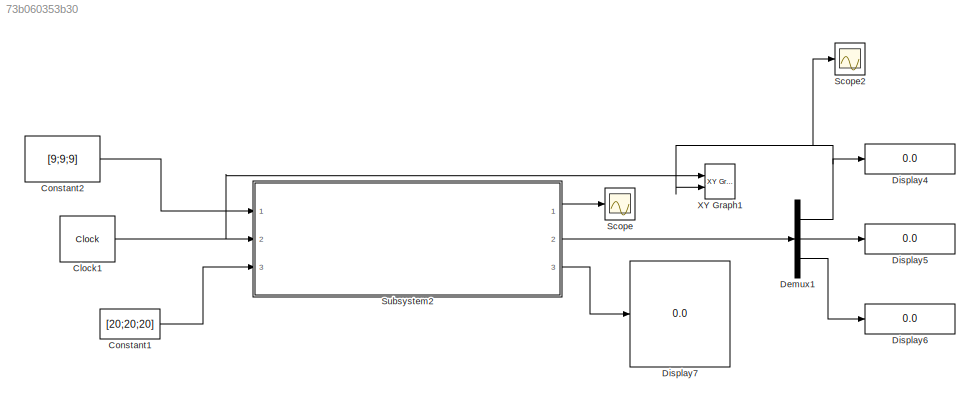
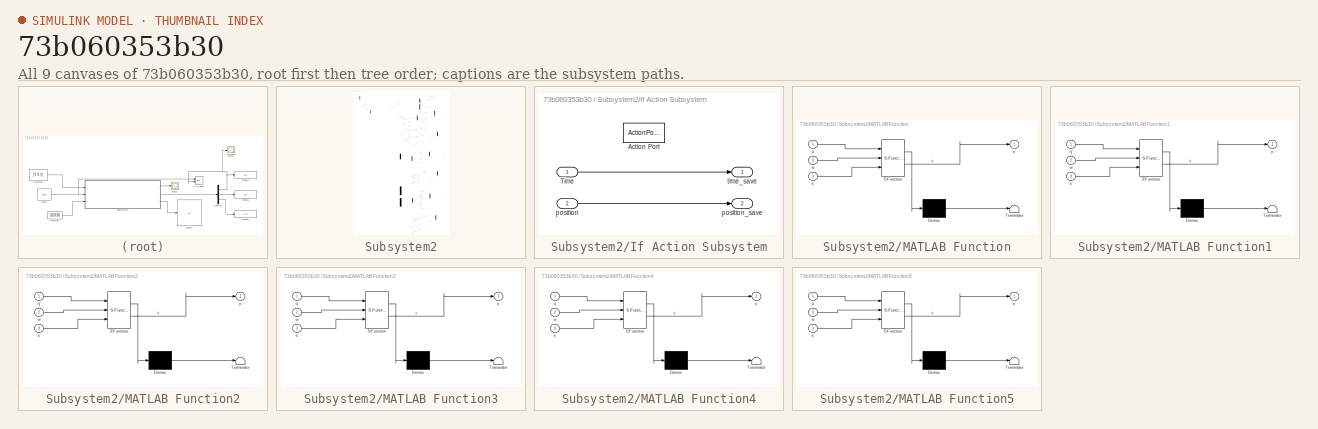
[diagram: thumbnail index - all 9 canvases of the model, root first then tree order]
MODEL slx_73b060353b30
KIND model
CONFIG AbsTol = auto
CONFIG EnableMultiTasking = off
CONFIG FixedStep = auto
CONFIG MaxStep = auto
CONFIG MinStep = auto
CONFIG RelTol = 1e-3
CONFIG SampleTimeConstraint = Unconstrained
CONFIG SolverName = VariableStepAuto
CONFIG StartTime = 0.0
CONFIG StopTime = inf
BLOCK [Clock] Clock1
  DisplayTime = on
BLOCK [Constant] Constant1
  Value = [20;20;20]
BLOCK [Constant] Constant2
  Value = [9;9;9]
BLOCK [Demux] Demux1
  Outputs = 3
  Ports = [1, 3]
BLOCK [Display] Display4
  Decimation = 1
  Ports = [1]
BLOCK [Display] Display5
  Decimation = 1
  Ports = [1]
BLOCK [Display] Display6
  Decimation = 1
  Ports = [1]
BLOCK [Display] Display7
  Decimation = 1
  Ports = [1]
BLOCK [Scope] Scope
  Floating = off
  NumInputPorts = 1
  Ports = [1]
  ScopeSpecificationString = Simulink.scopes.TimeScopeBlockCfg('CurrentConfiguration', extmgr.ConfigurationSet(extmgr.Configuration('Core','General UI',true),extmgr.Configuration('Core','Source UI',true),extmgr.Configuration('Sources','WiredSimulink',true),extmgr.Configuration('Visuals','Time Domain',true,'SerializedDisplays',{struct('MinYLimReal','-1.00000','MaxYLimReal','1.00000','YLabelReal','','MinYLimMag','0.00000','MaxY...<+1394ch>
BLOCK [Scope] Scope2
  Floating = off
  NumInputPorts = 1
  Ports = [1]
  ScopeSpecificationString = Simulink.scopes.TimeScopeBlockCfg('CurrentConfiguration', extmgr.ConfigurationSet(extmgr.Configuration('Core','General UI',true),extmgr.Configuration('Core','Source UI',true),extmgr.Configuration('Sources','WiredSimulink',true,'DataLoggingVariableName','ScopeData1'),extmgr.Configuration('Visuals','Time Domain',true,'SerializedDisplays',{struct('MinYLimReal','-2.75611','MaxYLimReal','24.80499','YLa...<+1399ch>
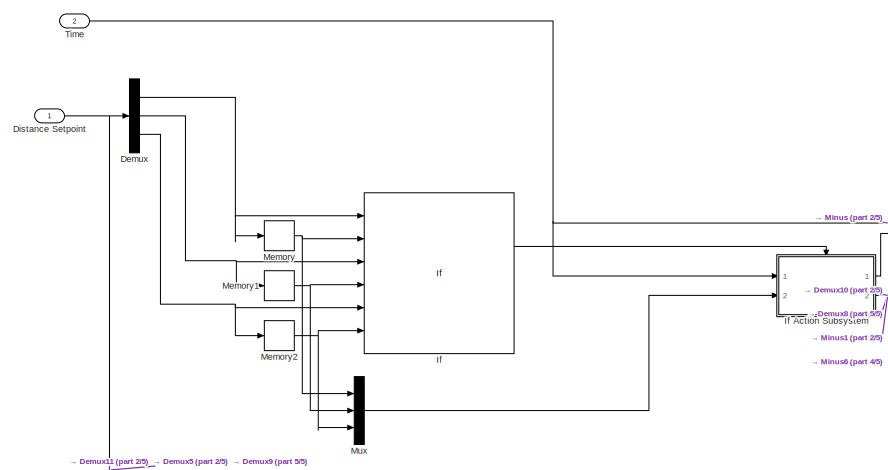
[diagram: Subsystem2 - part 1/5, top left region]
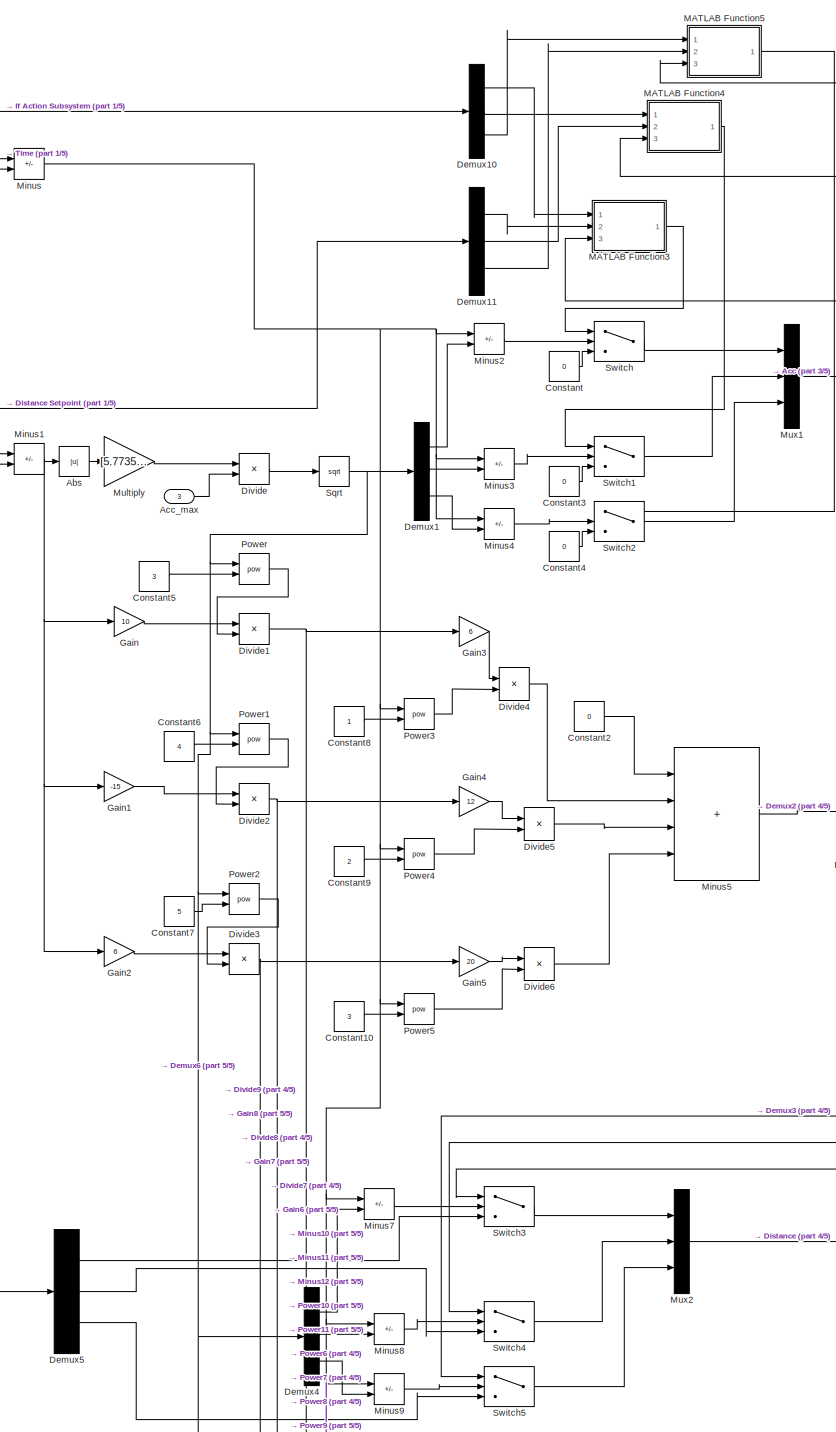
[diagram: Subsystem2 - part 2/5, top center region]
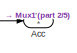
[diagram: Subsystem2 - part 3/5, top right region]
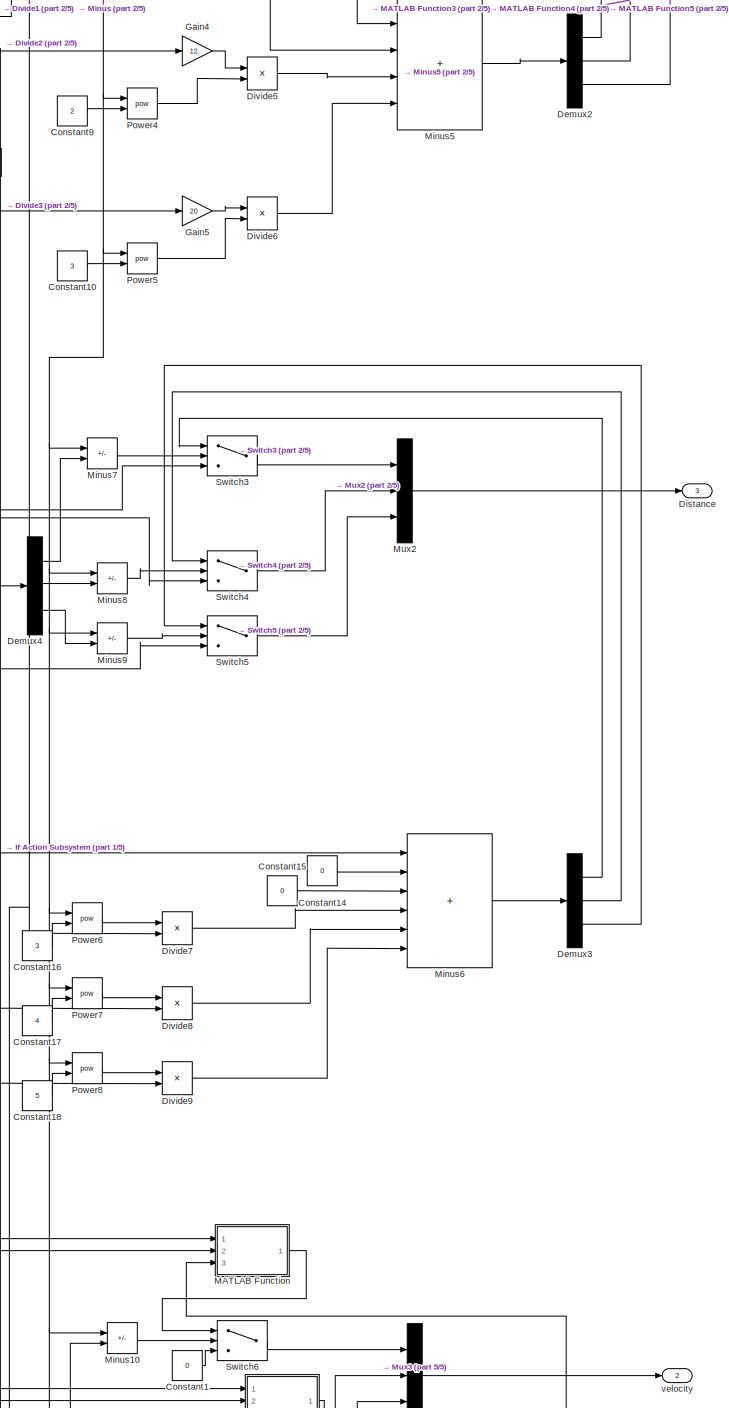
[diagram: Subsystem2 - part 4/5, middle right region]
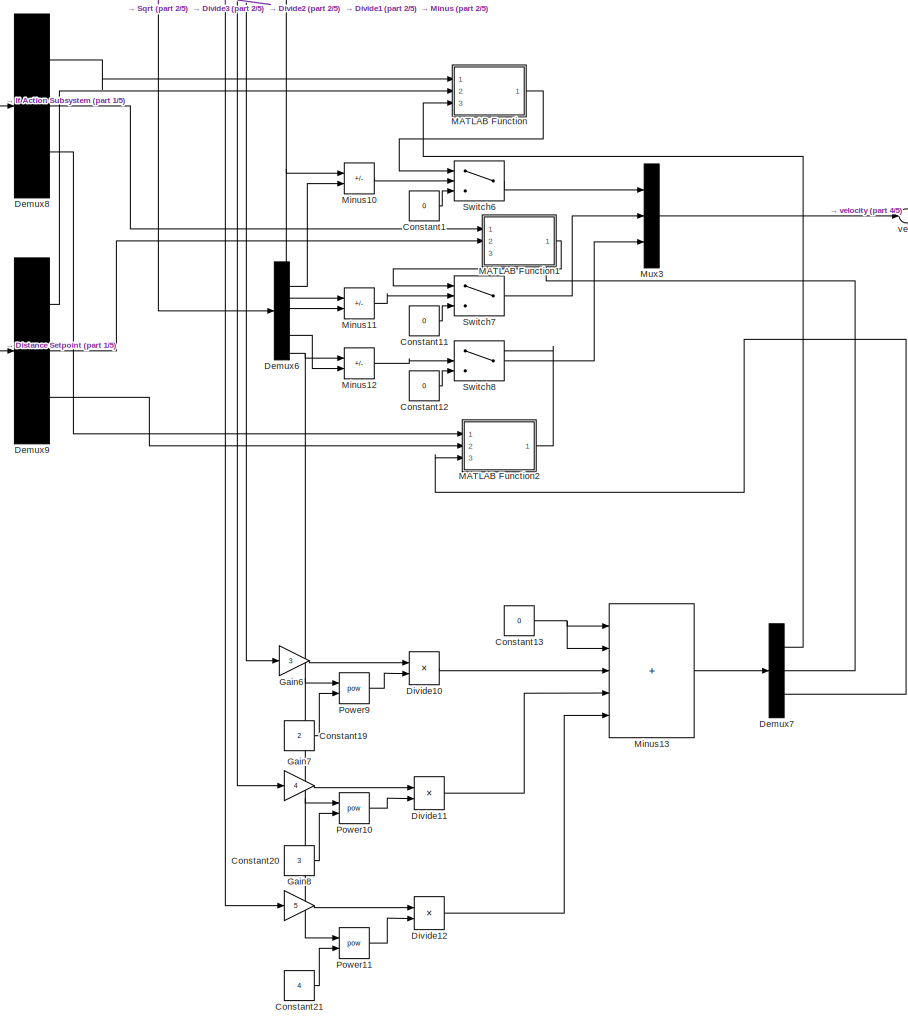
[diagram: Subsystem2 - part 5/5, bottom right region]
BLOCK [SubSystem] Subsystem2
  Ports = [3, 3]
  RequestExecContextInheritance = off
BLOCK [Abs] Subsystem2/Abs
  SaturateOnIntegerOverflow = off
BLOCK [Outport] Subsystem2/Acc 
BLOCK [Inport] Subsystem2/Acc_max
  Port = 3
BLOCK [Constant] Subsystem2/Constant
  Value = 0
BLOCK [Constant] Subsystem2/Constant1
  Value = 0
BLOCK [Constant] Subsystem2/Constant10
  Value = 3
BLOCK [Constant] Subsystem2/Constant11
  Value = 0
BLOCK [Constant] Subsystem2/Constant12
  Value = 0
BLOCK [Constant] Subsystem2/Constant13
  Value = 0
BLOCK [Constant] Subsystem2/Constant14
  Value = 0
BLOCK [Constant] Subsystem2/Constant15
  Value = 0
BLOCK [Constant] Subsystem2/Constant16
  Value = 3
BLOCK [Constant] Subsystem2/Constant17
  Value = 4
BLOCK [Constant] Subsystem2/Constant18
  Value = 5
BLOCK [Constant] Subsystem2/Constant19
  Value = 2
BLOCK [Constant] Subsystem2/Constant2
  Value = 0
BLOCK [Constant] Subsystem2/Constant20
  Value = 3
BLOCK [Constant] Subsystem2/Constant21
  Value = 4
BLOCK [Constant] Subsystem2/Constant3
  Value = 0
BLOCK [Constant] Subsystem2/Constant4
  Value = 0
BLOCK [Constant] Subsystem2/Constant5
  Value = 3
BLOCK [Constant] Subsystem2/Constant6
  Value = 4
BLOCK [Constant] Subsystem2/Constant7
  Value = 5
BLOCK [Constant] Subsystem2/Constant8
BLOCK [Constant] Subsystem2/Constant9
  Value = 2
BLOCK [Demux] Subsystem2/Demux
  Outputs = 3
  Ports = [1, 3]
BLOCK [Demux] Subsystem2/Demux1
  Outputs = 3
  Ports = [1, 3]
BLOCK [Demux] Subsystem2/Demux10
  Outputs = 3
  Ports = [1, 3]
BLOCK [Demux] Subsystem2/Demux11
  Outputs = 3
  Ports = [1, 3]
BLOCK [Demux] Subsystem2/Demux2
  Outputs = 3
  Ports = [1, 3]
BLOCK [Demux] Subsystem2/Demux3
  Outputs = 3
  Ports = [1, 3]
BLOCK [Demux] Subsystem2/Demux4
  Outputs = 3
  Ports = [1, 3]
BLOCK [Demux] Subsystem2/Demux5
  Outputs = 3
  Ports = [1, 3]
BLOCK [Demux] Subsystem2/Demux6
  Outputs = 3
  Ports = [1, 3]
BLOCK [Demux] Subsystem2/Demux7
  Outputs = 3
  Ports = [1, 3]
BLOCK [Demux] Subsystem2/Demux8
  Outputs = 3
  Ports = [1, 3]
BLOCK [Demux] Subsystem2/Demux9
  Outputs = 3
  Ports = [1, 3]
BLOCK [Outport] Subsystem2/Distance
  NameLocation = right
  Port = 3
BLOCK [Inport] Subsystem2/Distance Setpoint
BLOCK [Product] Subsystem2/Divide
  Inputs = */
  Ports = [2, 1]
BLOCK [Product] Subsystem2/Divide1
  Inputs = */
  Ports = [2, 1]
BLOCK [Product] Subsystem2/Divide10
  Inputs = **
  Ports = [2, 1]
BLOCK [Product] Subsystem2/Divide11
  Inputs = **
  Ports = [2, 1]
BLOCK [Product] Subsystem2/Divide12
  Inputs = **
  Ports = [2, 1]
BLOCK [Product] Subsystem2/Divide2
  Inputs = */
  Ports = [2, 1]
BLOCK [Product] Subsystem2/Divide3
  Inputs = */
  Ports = [2, 1]
BLOCK [Product] Subsystem2/Divide4
  Inputs = **
  Ports = [2, 1]
BLOCK [Product] Subsystem2/Divide5
  Inputs = **
  Ports = [2, 1]
BLOCK [Product] Subsystem2/Divide6
  Inputs = **
  Ports = [2, 1]
BLOCK [Product] Subsystem2/Divide7
  Inputs = **
  Ports = [2, 1]
BLOCK [Product] Subsystem2/Divide8
  Inputs = **
  Ports = [2, 1]
BLOCK [Product] Subsystem2/Divide9
  Inputs = **
  Ports = [2, 1]
BLOCK [Gain] Subsystem2/Gain
  Gain = 10
BLOCK [Gain] Subsystem2/Gain1
  Gain = -15
BLOCK [Gain] Subsystem2/Gain2
  Gain = 6
BLOCK [Gain] Subsystem2/Gain3
  Gain = 6
BLOCK [Gain] Subsystem2/Gain4
  Gain = 12
BLOCK [Gain] Subsystem2/Gain5
  Gain = 20
BLOCK [Gain] Subsystem2/Gain6
  Gain = 3
BLOCK [Gain] Subsystem2/Gain7
  Gain = 4
BLOCK [Gain] Subsystem2/Gain8
  Gain = 5
BLOCK [If] Subsystem2/If
  IfExpression = (u1~=u2 | u3~=u4 | u5~=u6)
  NumInputs = 6
  Ports = [6, 2]
BLOCK [SubSystem] Subsystem2/If Action Subsystem
  Ports = [2, 2, 0, 0, 0, 0, 0, 1]
  RequestExecContextInheritance = off
  TreatAsAtomicUnit = on
BLOCK [ActionPort] Subsystem2/If Action Subsystem/Action Port
  ActionPortLabel = if((u1~=u2 | u3~=u4 | u5~=u6))
  InitializeStates = reset
  PropagateVarSize = During execution
BLOCK [Inport] Subsystem2/If Action Subsystem/Time
BLOCK [Inport] Subsystem2/If Action Subsystem/position
  Port = 2
BLOCK [Outport] Subsystem2/If Action Subsystem/position_save
  Port = 2
BLOCK [Outport] Subsystem2/If Action Subsystem/time_save 
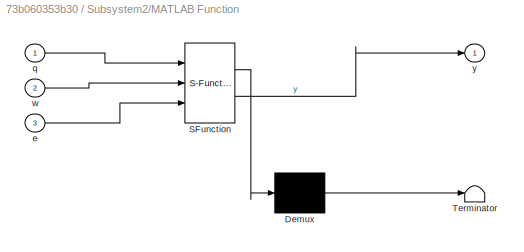
BLOCK [SubSystem] Subsystem2/MATLAB Function
  ErrorFcn = Stateflow.Translate.translate
  PermitHierarchicalResolution = ExplicitOnly
  Ports = [3, 1]
  RequestExecContextInheritance = off
  SFBlockType = MATLAB Function
  TreatAsAtomicUnit = on
BLOCK [Demux] Subsystem2/MATLAB Function/ Demux 
  Outputs = 1
  Ports = [1, 1]
BLOCK [S-Function] Subsystem2/MATLAB Function/ SFunction 
  EnableBusSupport = on
  FunctionName = sf_sfun
  PortCounts = [3 2]
  Ports = [3, 2]
  SFcnIsStateOwnerBlock = off
  SFunctionDeploymentMode = off
  Tag = Stateflow S-Function 1
BLOCK [Terminator] Subsystem2/MATLAB Function/ Terminator 
BLOCK [Inport] Subsystem2/MATLAB Function/e
  Port = 3
BLOCK [Inport] Subsystem2/MATLAB Function/q
BLOCK [Inport] Subsystem2/MATLAB Function/w
  Port = 2
BLOCK [Outport] Subsystem2/MATLAB Function/y
BLOCK [SubSystem] Subsystem2/MATLAB Function1
  ErrorFcn = Stateflow.Translate.translate
  PermitHierarchicalResolution = ExplicitOnly
  Ports = [3, 1]
  RequestExecContextInheritance = off
  SFBlockType = MATLAB Function
  TreatAsAtomicUnit = on
BLOCK [Demux] Subsystem2/MATLAB Function1/ Demux 
  Outputs = 1
  Ports = [1, 1]
BLOCK [S-Function] Subsystem2/MATLAB Function1/ SFunction 
  EnableBusSupport = on
  FunctionName = sf_sfun
  PortCounts = [3 2]
  Ports = [3, 2]
  SFcnIsStateOwnerBlock = off
  SFunctionDeploymentMode = off
  Tag = Stateflow S-Function 2
BLOCK [Terminator] Subsystem2/MATLAB Function1/ Terminator 
BLOCK [Inport] Subsystem2/MATLAB Function1/e
  Port = 3
BLOCK [Inport] Subsystem2/MATLAB Function1/q
BLOCK [Inport] Subsystem2/MATLAB Function1/w
  Port = 2
BLOCK [Outport] Subsystem2/MATLAB Function1/y
BLOCK [SubSystem] Subsystem2/MATLAB Function2
  ErrorFcn = Stateflow.Translate.translate
  PermitHierarchicalResolution = ExplicitOnly
  Ports = [3, 1]
  RequestExecContextInheritance = off
  SFBlockType = MATLAB Function
  TreatAsAtomicUnit = on
BLOCK [Demux] Subsystem2/MATLAB Function2/ Demux 
  Outputs = 1
  Ports = [1, 1]
BLOCK [S-Function] Subsystem2/MATLAB Function2/ SFunction 
  EnableBusSupport = on
  FunctionName = sf_sfun
  PortCounts = [3 2]
  Ports = [3, 2]
  SFcnIsStateOwnerBlock = off
  SFunctionDeploymentMode = off
  Tag = Stateflow S-Function 9
BLOCK [Terminator] Subsystem2/MATLAB Function2/ Terminator 
BLOCK [Inport] Subsystem2/MATLAB Function2/e
  Port = 3
BLOCK [Inport] Subsystem2/MATLAB Function2/q
BLOCK [Inport] Subsystem2/MATLAB Function2/w
  Port = 2
BLOCK [Outport] Subsystem2/MATLAB Function2/y
BLOCK [SubSystem] Subsystem2/MATLAB Function3
  ErrorFcn = Stateflow.Translate.translate
  PermitHierarchicalResolution = ExplicitOnly
  Ports = [3, 1]
  RequestExecContextInheritance = off
  SFBlockType = MATLAB Function
  TreatAsAtomicUnit = on
BLOCK [Demux] Subsystem2/MATLAB Function3/ Demux 
  Outputs = 1
  Ports = [1, 1]
BLOCK [S-Function] Subsystem2/MATLAB Function3/ SFunction 
  EnableBusSupport = on
  FunctionName = sf_sfun
  PortCounts = [3 2]
  Ports = [3, 2]
  SFcnIsStateOwnerBlock = off
  SFunctionDeploymentMode = off
  Tag = Stateflow S-Function 10
BLOCK [Terminator] Subsystem2/MATLAB Function3/ Terminator 
BLOCK [Inport] Subsystem2/MATLAB Function3/e
  Port = 3
BLOCK [Inport] Subsystem2/MATLAB Function3/q
BLOCK [Inport] Subsystem2/MATLAB Function3/w
  Port = 2
BLOCK [Outport] Subsystem2/MATLAB Function3/y
BLOCK [SubSystem] Subsystem2/MATLAB Function4
  ErrorFcn = Stateflow.Translate.translate
  PermitHierarchicalResolution = ExplicitOnly
  Ports = [3, 1]
  RequestExecContextInheritance = off
  SFBlockType = MATLAB Function
  TreatAsAtomicUnit = on
BLOCK [Demux] Subsystem2/MATLAB Function4/ Demux 
  Outputs = 1
  Ports = [1, 1]
BLOCK [S-Function] Subsystem2/MATLAB Function4/ SFunction 
  EnableBusSupport = on
  FunctionName = sf_sfun
  PortCounts = [3 2]
  Ports = [3, 2]
  SFcnIsStateOwnerBlock = off
  SFunctionDeploymentMode = off
  Tag = Stateflow S-Function 11
BLOCK [Terminator] Subsystem2/MATLAB Function4/ Terminator 
BLOCK [Inport] Subsystem2/MATLAB Function4/e
  Port = 3
BLOCK [Inport] Subsystem2/MATLAB Function4/q
BLOCK [Inport] Subsystem2/MATLAB Function4/w
  Port = 2
BLOCK [Outport] Subsystem2/MATLAB Function4/y
BLOCK [SubSystem] Subsystem2/MATLAB Function5
  ErrorFcn = Stateflow.Translate.translate
  PermitHierarchicalResolution = ExplicitOnly
  Ports = [3, 1]
  RequestExecContextInheritance = off
  SFBlockType = MATLAB Function
  TreatAsAtomicUnit = on
BLOCK [Demux] Subsystem2/MATLAB Function5/ Demux 
  Outputs = 1
  Ports = [1, 1]
BLOCK [S-Function] Subsystem2/MATLAB Function5/ SFunction 
  EnableBusSupport = on
  FunctionName = sf_sfun
  PortCounts = [3 2]
  Ports = [3, 2]
  SFcnIsStateOwnerBlock = off
  SFunctionDeploymentMode = off
  Tag = Stateflow S-Function 12
BLOCK [Terminator] Subsystem2/MATLAB Function5/ Terminator 
BLOCK [Inport] Subsystem2/MATLAB Function5/e
  Port = 3
BLOCK [Inport] Subsystem2/MATLAB Function5/q
BLOCK [Inport] Subsystem2/MATLAB Function5/w
  Port = 2
BLOCK [Outport] Subsystem2/MATLAB Function5/y
BLOCK [Memory] Subsystem2/Memory
BLOCK [Memory] Subsystem2/Memory1
BLOCK [Memory] Subsystem2/Memory2
BLOCK [Sum] Subsystem2/Minus
  IconShape = rectangular
  Inputs = +-
  Ports = [2, 1]
BLOCK [Sum] Subsystem2/Minus1
  IconShape = rectangular
  Inputs = +-
  Ports = [2, 1]
BLOCK [Sum] Subsystem2/Minus10
  IconShape = rectangular
  Inputs = -+
  Ports = [2, 1]
BLOCK [Sum] Subsystem2/Minus11
  IconShape = rectangular
  Inputs = -+
  Ports = [2, 1]
BLOCK [Sum] Subsystem2/Minus12
  IconShape = rectangular
  Inputs = -+
  Ports = [2, 1]
BLOCK [Sum] Subsystem2/Minus13
  IconShape = rectangular
  Inputs = +++++
  Ports = [5, 1]
BLOCK [Sum] Subsystem2/Minus2
  IconShape = rectangular
  Inputs = -+
  Ports = [2, 1]
BLOCK [Sum] Subsystem2/Minus3
  IconShape = rectangular
  Inputs = -+
  Ports = [2, 1]
BLOCK [Sum] Subsystem2/Minus4
  IconShape = rectangular
  Inputs = -+
  Ports = [2, 1]
BLOCK [Sum] Subsystem2/Minus5
  IconShape = rectangular
  Inputs = ++++
  Ports = [4, 1]
BLOCK [Sum] Subsystem2/Minus6
  IconShape = rectangular
  Inputs = ++++++
  Ports = [6, 1]
BLOCK [Sum] Subsystem2/Minus7
  IconShape = rectangular
  Inputs = -+
  Ports = [2, 1]
BLOCK [Sum] Subsystem2/Minus8
  IconShape = rectangular
  Inputs = -+
  Ports = [2, 1]
BLOCK [Sum] Subsystem2/Minus9
  IconShape = rectangular
  Inputs = -+
  Ports = [2, 1]
BLOCK [Gain] Subsystem2/Multiply
  Gain = [5.773502692;5.773502692;5.773502692]
BLOCK [Mux] Subsystem2/Mux
  DisplayOption = bar
  Inputs = 3
  Ports = [3, 1]
BLOCK [Mux] Subsystem2/Mux1
  DisplayOption = bar
  Inputs = 3
  Ports = [3, 1]
BLOCK [Mux] Subsystem2/Mux2
  DisplayOption = bar
  Inputs = 3
  Ports = [3, 1]
BLOCK [Mux] Subsystem2/Mux3
  DisplayOption = bar
  Inputs = 3
  Ports = [3, 1]
BLOCK [Math] Subsystem2/Power
  Operator = pow
  Ports = [2, 1]
BLOCK [Math] Subsystem2/Power1
  Operator = pow
  Ports = [2, 1]
BLOCK [Math] Subsystem2/Power10
  Operator = pow
  Ports = [2, 1]
BLOCK [Math] Subsystem2/Power11
  Operator = pow
  Ports = [2, 1]
BLOCK [Math] Subsystem2/Power2
  Operator = pow
  Ports = [2, 1]
BLOCK [Math] Subsystem2/Power3
  Operator = pow
  Ports = [2, 1]
BLOCK [Math] Subsystem2/Power4
  Operator = pow
  Ports = [2, 1]
BLOCK [Math] Subsystem2/Power5
  Operator = pow
  Ports = [2, 1]
BLOCK [Math] Subsystem2/Power6
  Operator = pow
  Ports = [2, 1]
BLOCK [Math] Subsystem2/Power7
  Operator = pow
  Ports = [2, 1]
BLOCK [Math] Subsystem2/Power8
  Operator = pow
  Ports = [2, 1]
BLOCK [Math] Subsystem2/Power9
  Operator = pow
  Ports = [2, 1]
BLOCK [Sqrt] Subsystem2/Sqrt
BLOCK [Switch] Subsystem2/Switch
  InputSameDT = off
  SaturateOnIntegerOverflow = off
BLOCK [Switch] Subsystem2/Switch1
  InputSameDT = off
  SaturateOnIntegerOverflow = off
BLOCK [Switch] Subsystem2/Switch2
  InputSameDT = off
  SaturateOnIntegerOverflow = off
BLOCK [Switch] Subsystem2/Switch3
  InputSameDT = off
  SaturateOnIntegerOverflow = off
BLOCK [Switch] Subsystem2/Switch4
  InputSameDT = off
  SaturateOnIntegerOverflow = off
BLOCK [Switch] Subsystem2/Switch5
  InputSameDT = off
  SaturateOnIntegerOverflow = off
BLOCK [Switch] Subsystem2/Switch6
  InputSameDT = off
  SaturateOnIntegerOverflow = off
BLOCK [Switch] Subsystem2/Switch7
  InputSameDT = off
  SaturateOnIntegerOverflow = off
BLOCK [Switch] Subsystem2/Switch8
  InputSameDT = off
  SaturateOnIntegerOverflow = off
BLOCK [Inport] Subsystem2/Time
  Port = 2
BLOCK [Outport] Subsystem2/velocity
  Port = 2
BLOCK [Reference] XY Graph1  REF=simulink/Sinks/XY Graph
  Ports = [2]
  SourceBlock = simulink/Sinks/XY Graph
  SourceProductBaseCode = SL
  SourceType = XY scope.
NET Clock1:1 -> Subsystem2:2, XY Graph1:1
LINE Constant1:1 -> Subsystem2:3
LINE Constant2:1 -> Subsystem2:1
NET Demux1:1 -> Display4:1, Scope2:1, XY Graph1:2
LINE Demux1:2 -> Display5:1
LINE Demux1:3 -> Display6:1
LINE Subsystem2/Abs:1 -> Subsystem2/Multiply:1
LINE Subsystem2/Acc_max:1 -> Subsystem2/Divide:2
LINE Subsystem2/Constant10:1 -> Subsystem2/Power5:2
LINE Subsystem2/Constant11:1 -> Subsystem2/Switch7:3
LINE Subsystem2/Constant12:1 -> Subsystem2/Switch8:3
NET Subsystem2/Constant13:1 -> Subsystem2/Minus13:1, Subsystem2/Minus13:2
LINE Subsystem2/Constant14:1 -> Subsystem2/Minus6:2
LINE Subsystem2/Constant15:1 -> Subsystem2/Minus6:3
LINE Subsystem2/Constant16:1 -> Subsystem2/Power6:2
LINE Subsystem2/Constant17:1 -> Subsystem2/Power7:2
LINE Subsystem2/Constant18:1 -> Subsystem2/Power8:2
LINE Subsystem2/Constant19:1 -> Subsystem2/Power9:2
LINE Subsystem2/Constant1:1 -> Subsystem2/Switch6:3
LINE Subsystem2/Constant20:1 -> Subsystem2/Power10:2
LINE Subsystem2/Constant21:1 -> Subsystem2/Power11:2
LINE Subsystem2/Constant2:1 -> Subsystem2/Minus5:1
LINE Subsystem2/Constant3:1 -> Subsystem2/Switch1:3
LINE Subsystem2/Constant4:1 -> Subsystem2/Switch2:3
LINE Subsystem2/Constant5:1 -> Subsystem2/Power:2
LINE Subsystem2/Constant6:1 -> Subsystem2/Power1:2
LINE Subsystem2/Constant7:1 -> Subsystem2/Power2:2
LINE Subsystem2/Constant8:1 -> Subsystem2/Power3:2
LINE Subsystem2/Constant9:1 -> Subsystem2/Power4:2
LINE Subsystem2/Constant:1 -> Subsystem2/Switch:3
LINE Subsystem2/Demux10:1 -> Subsystem2/MATLAB Function3:1
LINE Subsystem2/Demux10:2 -> Subsystem2/MATLAB Function4:1
LINE Subsystem2/Demux10:3 -> Subsystem2/MATLAB Function5:1
LINE Subsystem2/Demux11:1 -> Subsystem2/MATLAB Function3:2
LINE Subsystem2/Demux11:2 -> Subsystem2/MATLAB Function4:2
LINE Subsystem2/Demux11:3 -> Subsystem2/MATLAB Function5:2
LINE Subsystem2/Demux1:1 -> Subsystem2/Minus2:2
LINE Subsystem2/Demux1:2 -> Subsystem2/Minus3:2
LINE Subsystem2/Demux1:3 -> Subsystem2/Minus4:2
LINE Subsystem2/Demux2:1 -> Subsystem2/MATLAB Function3:3
LINE Subsystem2/Demux2:2 -> Subsystem2/MATLAB Function4:3
LINE Subsystem2/Demux2:3 -> Subsystem2/MATLAB Function5:3
LINE Subsystem2/Demux3:1 -> Subsystem2/Switch3:1
LINE Subsystem2/Demux3:2 -> Subsystem2/Switch4:1
LINE Subsystem2/Demux3:3 -> Subsystem2/Switch5:1
LINE Subsystem2/Demux4:1 -> Subsystem2/Minus7:2
LINE Subsystem2/Demux4:2 -> Subsystem2/Minus8:2
LINE Subsystem2/Demux4:3 -> Subsystem2/Minus9:2
LINE Subsystem2/Demux5:1 -> Subsystem2/Switch3:3
LINE Subsystem2/Demux5:2 -> Subsystem2/Switch4:3
LINE Subsystem2/Demux5:3 -> Subsystem2/Switch5:3
LINE Subsystem2/Demux6:1 -> Subsystem2/Minus10:2
LINE Subsystem2/Demux6:2 -> Subsystem2/Minus11:2
LINE Subsystem2/Demux6:3 -> Subsystem2/Minus12:2
LINE Subsystem2/Demux7:1 -> Subsystem2/MATLAB Function:3
LINE Subsystem2/Demux7:2 -> Subsystem2/MATLAB Function1:3
LINE Subsystem2/Demux7:3 -> Subsystem2/MATLAB Function2:3
LINE Subsystem2/Demux8:1 -> Subsystem2/MATLAB Function:1
LINE Subsystem2/Demux8:2 -> Subsystem2/MATLAB Function1:1
LINE Subsystem2/Demux8:3 -> Subsystem2/MATLAB Function2:1
LINE Subsystem2/Demux9:1 -> Subsystem2/MATLAB Function:2
LINE Subsystem2/Demux9:2 -> Subsystem2/MATLAB Function1:2
LINE Subsystem2/Demux9:3 -> Subsystem2/MATLAB Function2:2
NET Subsystem2/Demux:1 -> Subsystem2/If:1, Subsystem2/Memory:1
NET Subsystem2/Demux:2 -> Subsystem2/If:3, Subsystem2/Memory1:1
NET Subsystem2/Demux:3 -> Subsystem2/If:5, Subsystem2/Memory2:1
NET Subsystem2/Distance Setpoint:1 -> Subsystem2/Demux11:1, Subsystem2/Demux5:1, Subsystem2/Demux9:1, Subsystem2/Demux:1, Subsystem2/Minus1:1
LINE Subsystem2/Divide10:1 -> Subsystem2/Minus13:3
LINE Subsystem2/Divide11:1 -> Subsystem2/Minus13:4
LINE Subsystem2/Divide12:1 -> Subsystem2/Minus13:5
NET Subsystem2/Divide1:1 -> Subsystem2/Divide7:2, Subsystem2/Gain3:1, Subsystem2/Gain6:1
NET Subsystem2/Divide2:1 -> Subsystem2/Divide8:2, Subsystem2/Gain4:1, Subsystem2/Gain7:1
NET Subsystem2/Divide3:1 -> Subsystem2/Divide9:2, Subsystem2/Gain5:1, Subsystem2/Gain8:1
LINE Subsystem2/Divide4:1 -> Subsystem2/Minus5:2
LINE Subsystem2/Divide5:1 -> Subsystem2/Minus5:3
LINE Subsystem2/Divide6:1 -> Subsystem2/Minus5:4
LINE Subsystem2/Divide7:1 -> Subsystem2/Minus6:4
LINE Subsystem2/Divide8:1 -> Subsystem2/Minus6:5
LINE Subsystem2/Divide9:1 -> Subsystem2/Minus6:6
LINE Subsystem2/Divide:1 -> Subsystem2/Sqrt:1
LINE Subsystem2/Gain1:1 -> Subsystem2/Divide2:1
LINE Subsystem2/Gain2:1 -> Subsystem2/Divide3:1
LINE Subsystem2/Gain3:1 -> Subsystem2/Divide4:1
LINE Subsystem2/Gain4:1 -> Subsystem2/Divide5:1
LINE Subsystem2/Gain5:1 -> Subsystem2/Divide6:1
LINE Subsystem2/Gain6:1 -> Subsystem2/Divide10:1
LINE Subsystem2/Gain7:1 -> Subsystem2/Divide11:1
LINE Subsystem2/Gain8:1 -> Subsystem2/Divide12:1
LINE Subsystem2/Gain:1 -> Subsystem2/Divide1:1
LINE Subsystem2/If Action Subsystem/Time:1 -> Subsystem2/If Action Subsystem/time_save :1
LINE Subsystem2/If Action Subsystem/position:1 -> Subsystem2/If Action Subsystem/position_save:1
LINE Subsystem2/If Action Subsystem:1 -> Subsystem2/Minus:2
NET Subsystem2/If Action Subsystem:2 -> Subsystem2/Demux10:1, Subsystem2/Demux8:1, Subsystem2/Minus1:2, Subsystem2/Minus6:1
LINE Subsystem2/If:1 -> Subsystem2/If Action Subsystem:ifaction
LINE Subsystem2/MATLAB Function1:1 -> Subsystem2/Switch7:1
LINE Subsystem2/MATLAB Function2:1 -> Subsystem2/Switch8:1
LINE Subsystem2/MATLAB Function3:1 -> Subsystem2/Switch:1
LINE Subsystem2/MATLAB Function4:1 -> Subsystem2/Switch1:1
LINE Subsystem2/MATLAB Function5:1 -> Subsystem2/Switch2:1
LINE Subsystem2/MATLAB Function:1 -> Subsystem2/Switch6:1
NET Subsystem2/Memory1:1 -> Subsystem2/If:4, Subsystem2/Mux:2
NET Subsystem2/Memory2:1 -> Subsystem2/If:6, Subsystem2/Mux:3
NET Subsystem2/Memory:1 -> Subsystem2/If:2, Subsystem2/Mux:1
LINE Subsystem2/Minus10:1 -> Subsystem2/Switch6:2
LINE Subsystem2/Minus11:1 -> Subsystem2/Switch7:2
LINE Subsystem2/Minus12:1 -> Subsystem2/Switch8:2
LINE Subsystem2/Minus13:1 -> Subsystem2/Demux7:1
NET Subsystem2/Minus1:1 -> Subsystem2/Abs:1, Subsystem2/Gain1:1, Subsystem2/Gain2:1, Subsystem2/Gain:1
LINE Subsystem2/Minus2:1 -> Subsystem2/Switch:2
LINE Subsystem2/Minus3:1 -> Subsystem2/Switch1:2
LINE Subsystem2/Minus4:1 -> Subsystem2/Switch2:2
LINE Subsystem2/Minus5:1 -> Subsystem2/Demux2:1
LINE Subsystem2/Minus6:1 -> Subsystem2/Demux3:1
LINE Subsystem2/Minus7:1 -> Subsystem2/Switch3:2
LINE Subsystem2/Minus8:1 -> Subsystem2/Switch4:2
LINE Subsystem2/Minus9:1 -> Subsystem2/Switch5:2
NET Subsystem2/Minus:1 -> Subsystem2/Minus10:1, Subsystem2/Minus11:1, Subsystem2/Minus12:1, Subsystem2/Minus2:1, Subsystem2/Minus3:1, Subsystem2/Minus4:1, Subsystem2/Minus7:1, Subsystem2/Minus8:1, Subsystem2/Minus9:1, Subsystem2/Power10:1, Subsystem2/Power11:1, Subsystem2/Power3:1, Subsystem2/Power4:1, Subsystem2/Power5:1, Subsystem2/Power6:1, Subsystem2/Power7:1, Subsystem2/Power8:1, Subsystem2/Power9:1
LINE Subsystem2/Multiply:1 -> Subsystem2/Divide:1
LINE Subsystem2/Mux1:1 -> Subsystem2/Acc :1
LINE Subsystem2/Mux2:1 -> Subsystem2/Distance:1
LINE Subsystem2/Mux3:1 -> Subsystem2/velocity:1
LINE Subsystem2/Mux:1 -> Subsystem2/If Action Subsystem:2
LINE Subsystem2/Power10:1 -> Subsystem2/Divide11:2
LINE Subsystem2/Power11:1 -> Subsystem2/Divide12:2
LINE Subsystem2/Power1:1 -> Subsystem2/Divide2:2
LINE Subsystem2/Power2:1 -> Subsystem2/Divide3:2
LINE Subsystem2/Power3:1 -> Subsystem2/Divide4:2
LINE Subsystem2/Power4:1 -> Subsystem2/Divide5:2
LINE Subsystem2/Power5:1 -> Subsystem2/Divide6:2
LINE Subsystem2/Power6:1 -> Subsystem2/Divide7:1
LINE Subsystem2/Power7:1 -> Subsystem2/Divide8:1
LINE Subsystem2/Power8:1 -> Subsystem2/Divide9:1
LINE Subsystem2/Power9:1 -> Subsystem2/Divide10:2
LINE Subsystem2/Power:1 -> Subsystem2/Divide1:2
NET Subsystem2/Sqrt:1 -> Subsystem2/Demux1:1, Subsystem2/Demux4:1, Subsystem2/Demux6:1, Subsystem2/Power1:1, Subsystem2/Power2:1, Subsystem2/Power:1
LINE Subsystem2/Switch1:1 -> Subsystem2/Mux1:2
LINE Subsystem2/Switch2:1 -> Subsystem2/Mux1:3
LINE Subsystem2/Switch3:1 -> Subsystem2/Mux2:1
LINE Subsystem2/Switch4:1 -> Subsystem2/Mux2:2
LINE Subsystem2/Switch5:1 -> Subsystem2/Mux2:3
LINE Subsystem2/Switch6:1 -> Subsystem2/Mux3:1
LINE Subsystem2/Switch7:1 -> Subsystem2/Mux3:2
LINE Subsystem2/Switch8:1 -> Subsystem2/Mux3:3
LINE Subsystem2/Switch:1 -> Subsystem2/Mux1:1
NET Subsystem2/Time:1 -> Subsystem2/If Action Subsystem:1, Subsystem2/Minus:1
LINE Subsystem2:1 -> Scope:1
LINE Subsystem2:2 -> Demux1:1
LINE Subsystem2:3 -> Display7:1
note: NET lines group one-source signal fan-out (src -> all destinations, sorted); 1:1 wires keep LINE
CHART Subsystem2/MATLAB Function1 states=1 transitions=1
  STATE_LABEL 'eML_blk_kernel()'
  STATE_LABEL 'SCRIPT:\nfunction y = fcn(q,w,e)\n  if(q==w)\n    y=0;\n  else \n    y = e; \n  end\n\nend'
CHART Subsystem2/MATLAB Function2 states=1 transitions=1
  STATE_LABEL 'eML_blk_kernel()'
  STATE_LABEL 'SCRIPT:\nfunction y = fcn(q,w,e)\n  if(q==w)\n    y=0;\n  else \n    y = e; \n  end\n\nend'
CHART Subsystem2/MATLAB Function3 states=1 transitions=1
  STATE_LABEL 'eML_blk_kernel()'
  STATE_LABEL 'SCRIPT:\nfunction y = fcn(q,w,e)\n  if(q==w)\n    y=0;\n  else \n    y = e; \n  end\n\nend'
CHART Subsystem2/MATLAB Function4 states=1 transitions=1
  STATE_LABEL 'eML_blk_kernel()'
  STATE_LABEL 'SCRIPT:\nfunction y = fcn(q,w,e)\n  if(q==w)\n    y=0;\n  else \n    y = e; \n  end\n\nend'
CHART Subsystem2/MATLAB Function5 states=1 transitions=1
  STATE_LABEL 'eML_blk_kernel()'
  STATE_LABEL 'SCRIPT:\nfunction y = fcn(q,w,e)\n  if(q==w)\n    y=0;\n  else \n    y = e; \n  end\n\nend'
CHART Subsystem2/MATLAB Function states=1 transitions=1
  STATE_LABEL 'eML_blk_kernel()'
  STATE_LABEL 'SCRIPT:\nfunction y = fcn(q,w,e)\n  if(q==w)\n    y=0;\n  else \n    y = e; \n  end\n\nend'
CHART  states=0 transitions=0
CHART  states=0 transitions=0
CHART  states=0 transitions=0
CHART  states=0 transitions=0
CHART  states=0 transitions=0
CHART  states=0 transitions=0
